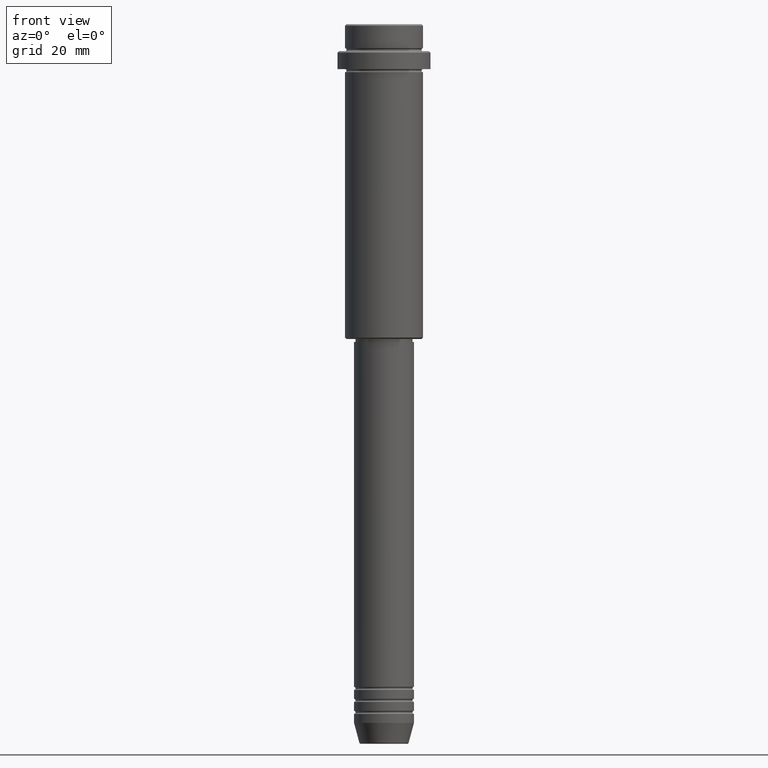
[diagram: clean part render]
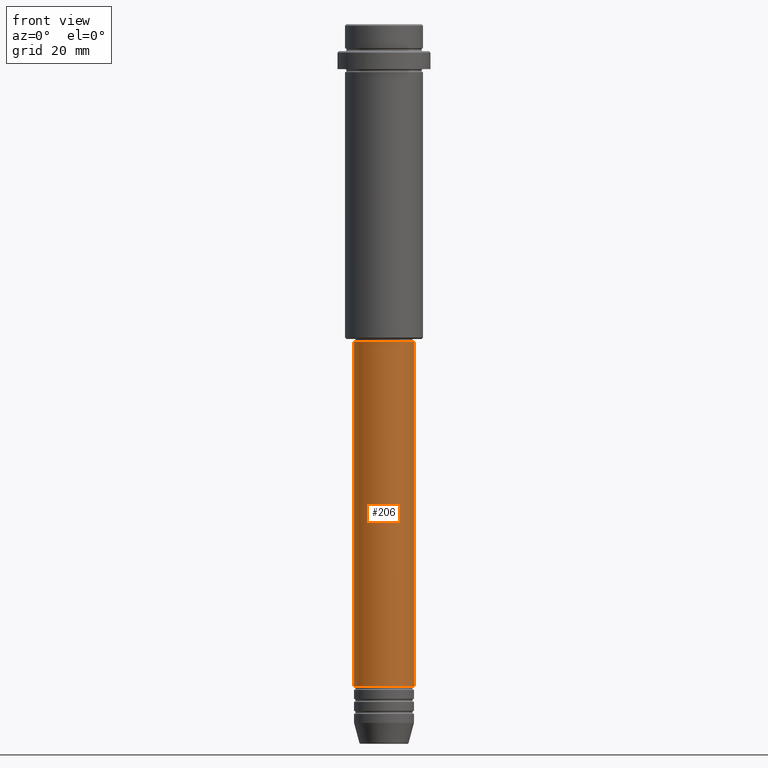
[diagram: same view with one face highlighted and labeled with its STEP entity id]
A machine part, front view. The second image highlights one B-rep face of the part: STEP entity #206.
In plain terms, the highlighted cylindrical surface (edge-blend (fillet) strip) has radius 10 mm, axis along (-0, -0, 1).
Its self-contained STEP definition (entity closure, byte-faithful):
#17 = AXIS2_PLACEMENT_3D ( 'NONE', #77, #1372, #649 ) ;
#22 = ORIENTED_EDGE ( 'NONE', *, *, #1147, .T. ) ;
#65 = LINE ( 'NONE', #614, #1154 ) ;
#77 = CARTESIAN_POINT ( 'NONE',  ( 0.000000000000000000, 0.000000000000000000, -106.0000000000000142 ) ) ;
#97 = CYLINDRICAL_SURFACE ( 'NONE', #888, 10.00000000000000178 ) ;
#122 = CARTESIAN_POINT ( 'NONE',  ( -10.00000000000000000, 1.224646799147353256E-15, -220.9999999999999432 ) ) ;
#136 = VERTEX_POINT ( 'NONE', #1375 ) ;
#143 = EDGE_CURVE ( 'NONE', #356, #136, #65, .T. ) ;
#177 = EDGE_CURVE ( 'NONE', #1027, #872, #836, .T. ) ;
#206 = ADVANCED_FACE ( 'NONE', ( #651 ), #97, .T. ) ;
#215 = CARTESIAN_POINT ( 'NONE',  ( 0.000000000000000000, 0.000000000000000000, 0.000000000000000000 ) ) ;
#217 = ORIENTED_EDGE ( 'NONE', *, *, #177, .F. ) ;
#280 = DIRECTION ( 'NONE',  ( -0.000000000000000000, -0.000000000000000000, 1.000000000000000000 ) ) ;
#330 = DIRECTION ( 'NONE',  ( 1.000000000000000000, 0.000000000000000000, 0.000000000000000000 ) ) ;
#356 = VERTEX_POINT ( 'NONE', #1237 ) ;
#380 = CARTESIAN_POINT ( 'NONE',  ( 0.000000000000000000, 0.000000000000000000, -220.9999999999999432 ) ) ;
#398 = DIRECTION ( 'NONE',  ( -0.000000000000000000, -0.000000000000000000, 1.000000000000000000 ) ) ;
#561 = ORIENTED_EDGE ( 'NONE', *, *, #143, .T. ) ;
#614 = CARTESIAN_POINT ( 'NONE',  ( 10.00000000000000178, 0.000000000000000000, 0.000000000000000000 ) ) ;
#625 = CIRCLE ( 'NONE', #17, 10.00000000000000178 ) ;
#649 = DIRECTION ( 'NONE',  ( 1.000000000000000000, 0.000000000000000000, 0.000000000000000000 ) ) ;
#651 = FACE_OUTER_BOUND ( 'NONE', #661, .T. ) ;
#661 = EDGE_LOOP ( 'NONE', ( #217, #22, #561, #774 ) ) ;
#673 = CIRCLE ( 'NONE', #1184, 10.00000000000000000 ) ;
#755 = CARTESIAN_POINT ( 'NONE',  ( -10.00000000000000178, 1.224646799147353454E-15, -106.0000000000000142 ) ) ;
#774 = ORIENTED_EDGE ( 'NONE', *, *, #1379, .F. ) ;
#836 = LINE ( 'NONE', #1149, #1345 ) ;
#872 = VERTEX_POINT ( 'NONE', #755 ) ;
#888 = AXIS2_PLACEMENT_3D ( 'NONE', #215, #1200, #330 ) ;
#907 = DIRECTION ( 'NONE',  ( 1.000000000000000000, 0.000000000000000000, 0.000000000000000000 ) ) ;
#1027 = VERTEX_POINT ( 'NONE', #122 ) ;
#1142 = DIRECTION ( 'NONE',  ( -0.000000000000000000, -0.000000000000000000, 1.000000000000000000 ) ) ;
#1147 = EDGE_CURVE ( 'NONE', #1027, #356, #673, .T. ) ;
#1149 = CARTESIAN_POINT ( 'NONE',  ( -10.00000000000000178, 1.224646799147353454E-15, 0.000000000000000000 ) ) ;
#1154 = VECTOR ( 'NONE', #1142, 1000.000000000000000 ) ;
#1184 = AXIS2_PLACEMENT_3D ( 'NONE', #380, #280, #907 ) ;
#1200 = DIRECTION ( 'NONE',  ( -0.000000000000000000, -0.000000000000000000, 1.000000000000000000 ) ) ;
#1237 = CARTESIAN_POINT ( 'NONE',  ( 10.00000000000000000, 0.000000000000000000, -220.9999999999999432 ) ) ;
#1345 = VECTOR ( 'NONE', #398, 1000.000000000000000 ) ;
#1372 = DIRECTION ( 'NONE',  ( -0.000000000000000000, -0.000000000000000000, 1.000000000000000000 ) ) ;
#1375 = CARTESIAN_POINT ( 'NONE',  ( 10.00000000000000178, 0.000000000000000000, -106.0000000000000142 ) ) ;
#1379 = EDGE_CURVE ( 'NONE', #872, #136, #625, .T. ) ;